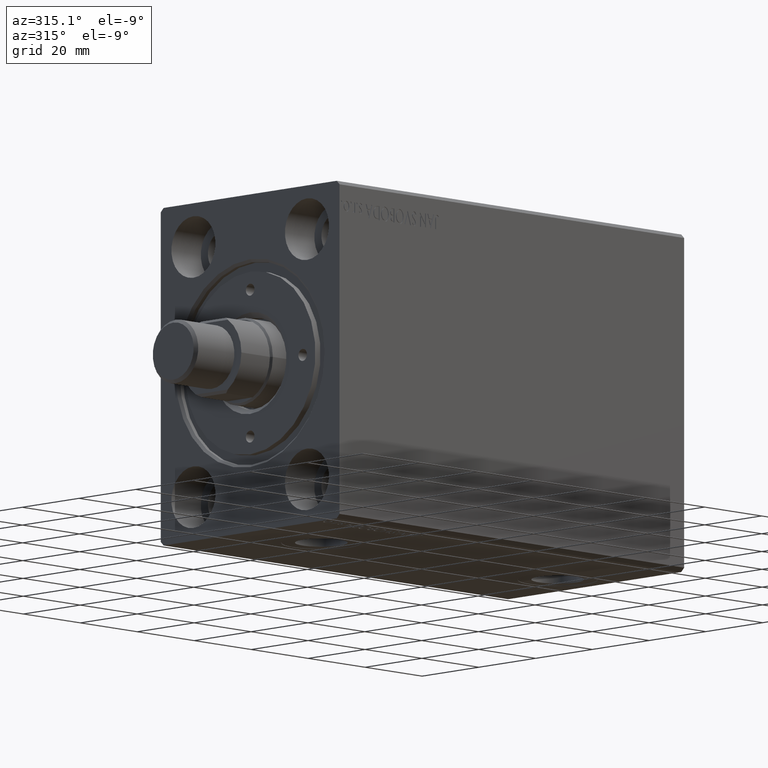
[diagram: clean part render]
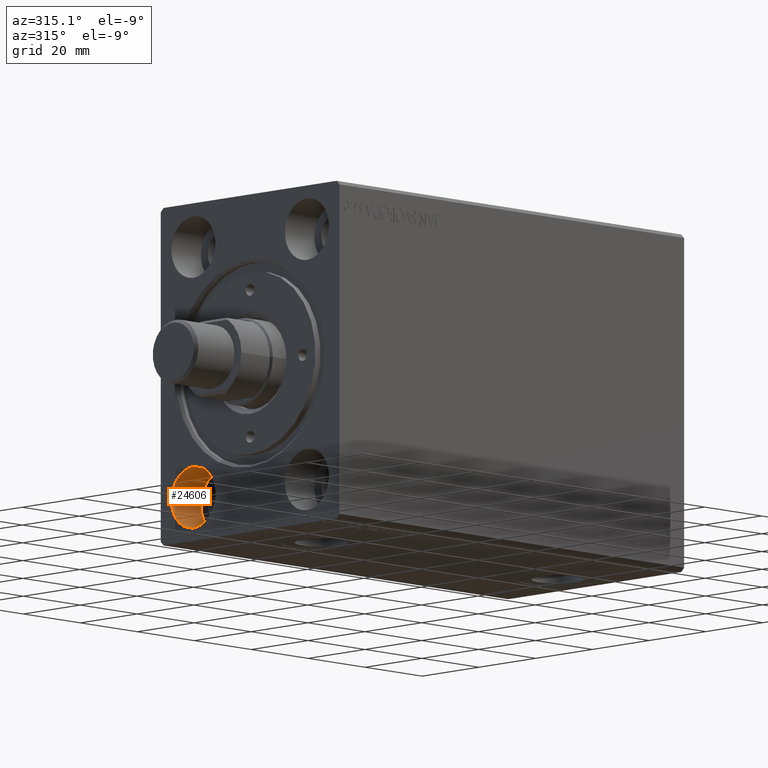
[diagram: same view with one face highlighted and labeled with its STEP entity id]
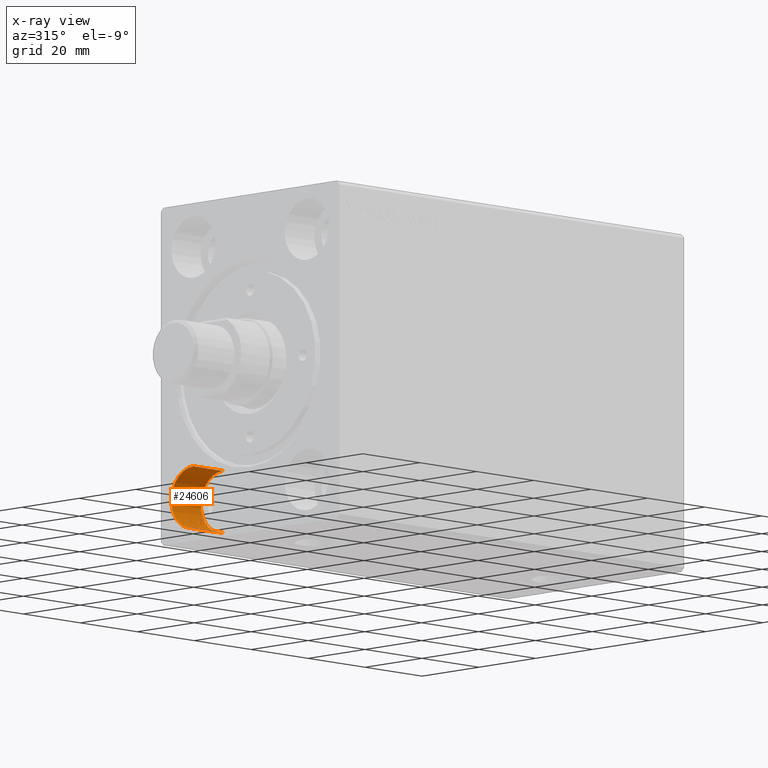
[diagram: x-ray of the same camera — body ghosted, the highlighted face saturated]
A machine part, auxiliary view. The second image highlights one B-rep face of the part: STEP entity #24606.
The next image is the same camera in x-ray: the body ghosted, the highlighted face saturated — about 0% of this face is hidden behind the body in this view.
In plain terms, the highlighted cylindrical surface (edge-blend (fillet) strip) has radius 7.75 mm, axis along (-1, -0, -0).
Its self-contained STEP definition (entity closure, byte-faithful):
#228 = DIRECTION ( 'NONE',  ( -1.000000000000000000, -0.000000000000000000, -0.000000000000000000 ) ) ;
#3178 = ORIENTED_EDGE ( 'NONE', *, *, #43198, .T. ) ;
#4238 = CARTESIAN_POINT ( 'NONE',  ( 10.33000000000000007, 20.00000000000000355, -39.24999999999998579 ) ) ;
#5186 = CARTESIAN_POINT ( 'NONE',  ( 10.33000000000000007, 20.00000000000000355, -31.49999999999998579 ) ) ;
#6327 = CARTESIAN_POINT ( 'NONE',  ( 10.33000000000000007, 20.00000000000000355, -31.49999999999998579 ) ) ;
#7248 = EDGE_CURVE ( 'NONE', #20168, #25840, #27092, .T. ) ;
#7722 = AXIS2_PLACEMENT_3D ( 'NONE', #11876, #8507, #32563 ) ;
#8068 = LINE ( 'NONE', #4238, #16462 ) ;
#8507 = DIRECTION ( 'NONE',  ( -1.000000000000000000, 0.000000000000000000, 0.000000000000000000 ) ) ;
#8780 = DIRECTION ( 'NONE',  ( -1.000000000000000000, -0.000000000000000000, -0.000000000000000000 ) ) ;
#9764 = ORIENTED_EDGE ( 'NONE', *, *, #7248, .T. ) ;
#10952 = CARTESIAN_POINT ( 'NONE',  ( 0.000000000000000000, 20.00000000000000355, -23.74999999999998579 ) ) ;
#11876 = CARTESIAN_POINT ( 'NONE',  ( 0.000000000000000000, 20.00000000000000355, -31.49999999999998579 ) ) ;
#13241 = EDGE_CURVE ( 'NONE', #40930, #23046, #14324, .T. ) ;
#14324 = CIRCLE ( 'NONE', #42369, 7.750000000000000000 ) ;
#15280 = VECTOR ( 'NONE', #228, 1000.000000000000000 ) ;
#16462 = VECTOR ( 'NONE', #32559, 1000.000000000000000 ) ;
#19035 = ORIENTED_EDGE ( 'NONE', *, *, #13241, .F. ) ;
#19108 = FACE_OUTER_BOUND ( 'NONE', #32523, .T. ) ;
#19276 = CARTESIAN_POINT ( 'NONE',  ( 10.33000000000000007, 20.00000000000000355, -23.74999999999998579 ) ) ;
#20168 = VERTEX_POINT ( 'NONE', #10952 ) ;
#20459 = CARTESIAN_POINT ( 'NONE',  ( 10.33000000000000007, 20.00000000000000355, -23.74999999999998579 ) ) ;
#23046 = VERTEX_POINT ( 'NONE', #34521 ) ;
#23193 = DIRECTION ( 'NONE',  ( -1.000000000000000000, 0.000000000000000000, 0.000000000000000000 ) ) ;
#24606 = ADVANCED_FACE ( 'NONE', ( #19108 ), #39593, .F. ) ;
#24910 = EDGE_CURVE ( 'NONE', #23046, #25840, #8068, .T. ) ;
#25720 = ORIENTED_EDGE ( 'NONE', *, *, #24910, .F. ) ;
#25840 = VERTEX_POINT ( 'NONE', #26607 ) ;
#26607 = CARTESIAN_POINT ( 'NONE',  ( 0.000000000000000000, 20.00000000000000355, -39.24999999999998579 ) ) ;
#26792 = DIRECTION ( 'NONE',  ( 0.000000000000000000, 0.000000000000000000, 1.000000000000000000 ) ) ;
#27092 = CIRCLE ( 'NONE', #7722, 7.750000000000000000 ) ;
#31035 = LINE ( 'NONE', #20459, #15280 ) ;
#32523 = EDGE_LOOP ( 'NONE', ( #25720, #19035, #3178, #9764 ) ) ;
#32559 = DIRECTION ( 'NONE',  ( -1.000000000000000000, -0.000000000000000000, -0.000000000000000000 ) ) ;
#32563 = DIRECTION ( 'NONE',  ( 0.000000000000000000, 0.000000000000000000, 1.000000000000000000 ) ) ;
#34521 = CARTESIAN_POINT ( 'NONE',  ( 10.33000000000000007, 20.00000000000000355, -39.24999999999998579 ) ) ;
#35119 = AXIS2_PLACEMENT_3D ( 'NONE', #5186, #8780, #39370 ) ;
#39370 = DIRECTION ( 'NONE',  ( 0.000000000000000000, 0.000000000000000000, 1.000000000000000000 ) ) ;
#39593 = CYLINDRICAL_SURFACE ( 'NONE', #35119, 7.750000000000000000 ) ;
#40930 = VERTEX_POINT ( 'NONE', #19276 ) ;
#42369 = AXIS2_PLACEMENT_3D ( 'NONE', #6327, #23193, #26792 ) ;
#43198 = EDGE_CURVE ( 'NONE', #40930, #20168, #31035, .T. ) ;